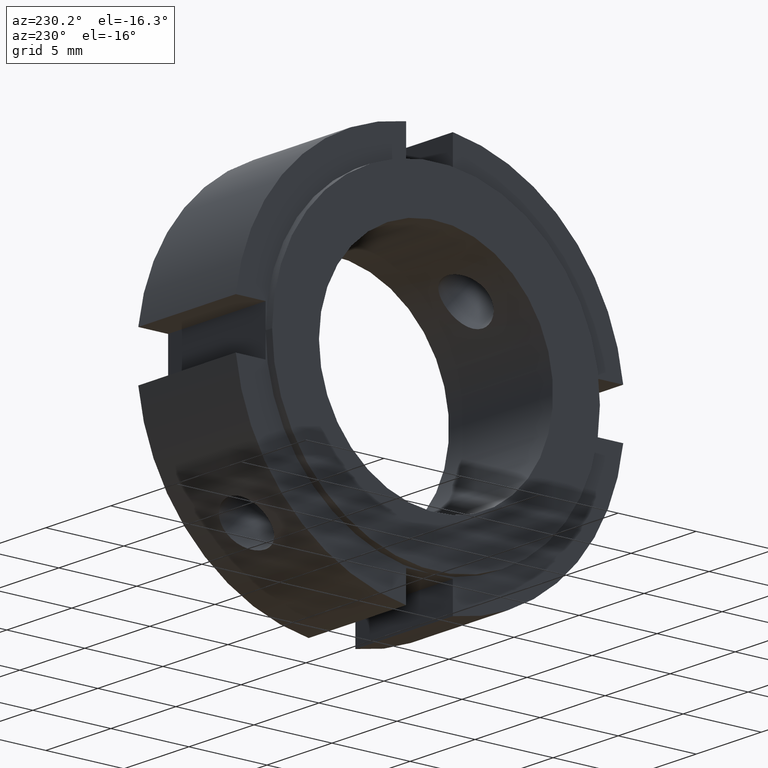
[diagram: clean part render]
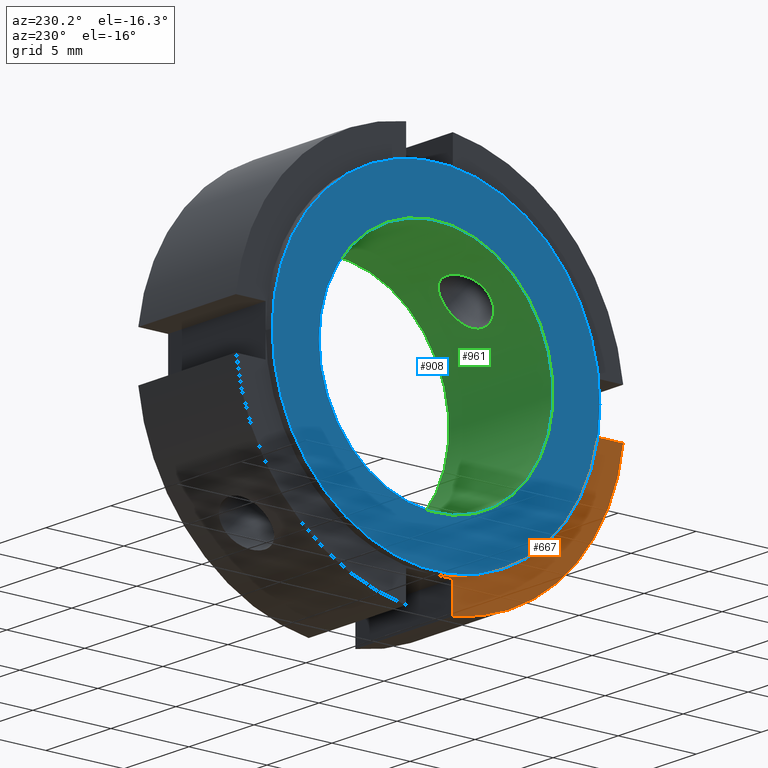
[diagram: same view with three faces highlighted in distinct colors, each labeled with its STEP entity id]
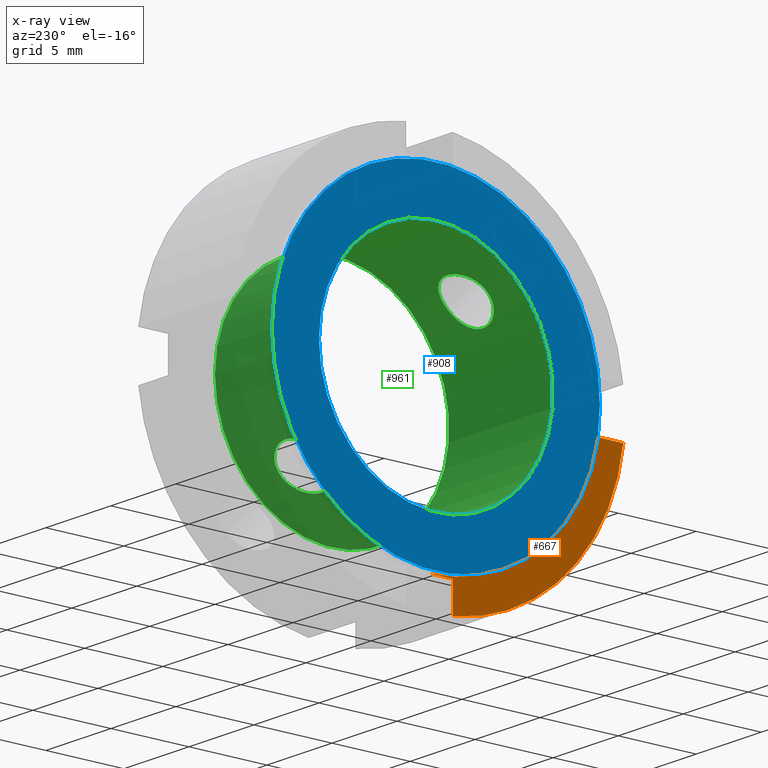
[diagram: x-ray of the same camera — body ghosted, the three highlighted faces saturated]
A machine part, auxiliary view with three faces highlighted in distinct colors.
The next image is the same camera in x-ray (body ghosted, the three faces saturated) — at least one of them is partly hidden behind the body in this view.
Their STEP definitions:

[orange] entity #667 — the highlighted planar face has unit normal (-1, 0, 0).
#249=CARTESIAN_POINT('',(0.499999999999998,-1.500000000000002,-10.499999999999996));
#250=VERTEX_POINT('',#249);
#251=CARTESIAN_POINT('',(0.499999999999998,-1.500000000000002,-12.409673645990853));
#252=VERTEX_POINT('',#251);
#253=CARTESIAN_POINT('',(0.499999999999998,-1.500000000000002,-10.499999999999996));
#254=DIRECTION('',(0.0,0.0,-1.0));
#255=VECTOR('',#254,1.909673645990857);
#256=LINE('',#253,#255);
#257=EDGE_CURVE('',#250,#252,#256,.T.);
#329=CARTESIAN_POINT('',(0.499999999999998,-1.942890E-015,-10.499999999999996));
#330=VERTEX_POINT('',#329);
#345=CARTESIAN_POINT('',(0.499999999999998,-2.664535E-015,-10.499999999999996));
#346=DIRECTION('',(0.0,-1.0,0.0));
#347=VECTOR('',#346,1.500000000000000);
#348=LINE('',#345,#347);
#349=EDGE_CURVE('',#330,#250,#348,.T.);
#399=CARTESIAN_POINT('',(0.499999999999998,-12.409673645990853,-1.499999999999998));
#400=VERTEX_POINT('',#399);
#401=CARTESIAN_POINT('',(0.499999999999998,-10.499999999999996,-1.499999999999999));
#402=VERTEX_POINT('',#401);
#403=CARTESIAN_POINT('',(0.499999999999998,-12.409673645990853,-1.499999999999998));
#404=DIRECTION('',(0.0,1.0,0.0));
#405=VECTOR('',#404,1.909673645990857);
#406=LINE('',#403,#405);
#407=EDGE_CURVE('',#400,#402,#406,.T.);
#439=CARTESIAN_POINT('',(0.499999999999998,-10.499999999999996,1.318390E-015));
#440=VERTEX_POINT('',#439);
#441=CARTESIAN_POINT('',(0.499999999999998,-10.499999999999996,-1.499999999999999));
#442=DIRECTION('',(0.0,0.0,1.0));
#443=VECTOR('',#442,1.500000000000000);
#444=LINE('',#441,#443);
#445=EDGE_CURVE('',#402,#440,#444,.T.);
#642=CARTESIAN_POINT('',(0.499999999999998,11.499999999999996,0.0));
#643=DIRECTION('',(-1.0,0.0,0.0));
#644=DIRECTION('',(0.0,0.0,1.0));
#645=AXIS2_PLACEMENT_3D('',#642,#643,#644);
#646=PLANE('',#645);
#647=ORIENTED_EDGE('',*,*,#349,.T.);
#648=ORIENTED_EDGE('',*,*,#257,.T.);
#649=CARTESIAN_POINT('',(0.499999999999998,0.0,0.0));
#650=DIRECTION('',(1.0,0.0,0.0));
#651=DIRECTION('',(0.0,1.0,0.0));
#652=AXIS2_PLACEMENT_3D('',#649,#650,#651);
#653=CIRCLE('',#652,12.499999999999996);
#654=EDGE_CURVE('',#400,#252,#653,.T.);
#655=ORIENTED_EDGE('',*,*,#654,.F.);
#656=ORIENTED_EDGE('',*,*,#407,.T.);
#657=ORIENTED_EDGE('',*,*,#445,.T.);
#658=CARTESIAN_POINT('',(0.499999999999998,0.0,0.0));
#659=DIRECTION('',(1.0,0.0,0.0));
#660=DIRECTION('',(0.0,1.0,0.0));
#661=AXIS2_PLACEMENT_3D('',#658,#659,#660);
#662=CIRCLE('',#661,10.499999999999998);
#663=EDGE_CURVE('',#440,#330,#662,.T.);
#664=ORIENTED_EDGE('',*,*,#663,.T.);
#665=EDGE_LOOP('',(#647,#648,#655,#656,#657,#664));
#666=FACE_OUTER_BOUND('',#665,.T.);
#667=ADVANCED_FACE('',(#666),#646,.T.);

[blue] entity #908 — the highlighted planar face has unit normal (-1, 0, 0).
#881=CARTESIAN_POINT('',(-2.921703E-015,9.0,0.0));
#882=DIRECTION('',(-1.0,0.0,0.0));
#883=DIRECTION('',(0.0,0.0,1.0));
#884=AXIS2_PLACEMENT_3D('',#881,#882,#883);
#885=PLANE('',#884);
#886=CARTESIAN_POINT('',(-4.440892E-015,10.499999999999998,0.0));
#887=VERTEX_POINT('',#886);
#888=CARTESIAN_POINT('',(-4.440892E-015,0.0,0.0));
#889=DIRECTION('',(1.0,0.0,0.0));
#890=DIRECTION('',(0.0,1.0,0.0));
#891=AXIS2_PLACEMENT_3D('',#888,#889,#890);
#892=CIRCLE('',#891,10.499999999999998);
#893=EDGE_CURVE('',#887,#887,#892,.T.);
#894=ORIENTED_EDGE('',*,*,#893,.F.);
#895=EDGE_LOOP('',(#894));
#896=FACE_OUTER_BOUND('',#895,.T.);
#897=CARTESIAN_POINT('',(-1.402514E-015,7.500000000000000,0.0));
#898=VERTEX_POINT('',#897);
#899=CARTESIAN_POINT('',(-1.402958E-015,0.0,0.0));
#900=DIRECTION('',(1.0,0.0,0.0));
#901=DIRECTION('',(0.0,1.0,0.0));
#902=AXIS2_PLACEMENT_3D('',#899,#900,#901);
#903=CIRCLE('',#902,7.500000000000000);
#904=EDGE_CURVE('',#898,#898,#903,.T.);
#905=ORIENTED_EDGE('',*,*,#904,.T.);
#906=EDGE_LOOP('',(#905));
#907=FACE_BOUND('',#906,.T.);
#908=ADVANCED_FACE('',(#896,#907),#885,.T.);

[green] entity #961 — the highlighted cylindrical surface (bore or boss wall) has radius 7.5 mm, axis along (1, 0, 0).
#114=CARTESIAN_POINT('',(3.999999999999997,-6.324171376353871,4.031731191747086));
#115=VERTEX_POINT('',#114);
#116=CARTESIAN_POINT('',(3.999999999999997,-6.324171376353870,4.031731191747088));
#117=CARTESIAN_POINT('',(4.204239403672410,-6.324171376353870,4.031731191747088));
#118=CARTESIAN_POINT('',(4.421634678388318,-6.301885020609548,4.067356368764484));
#119=CARTESIAN_POINT('',(4.820814424856688,-6.208630451458799,4.208331072357209));
#120=CARTESIAN_POINT('',(5.002656817407534,-6.137316574939787,4.313287444523376));
#121=CARTESIAN_POINT('',(5.289772324510700,-5.965691695416834,4.547705209113352));
#122=CARTESIAN_POINT('',(5.414422851442749,-5.853754513232757,4.692938598354518));
#123=CARTESIAN_POINT('',(5.580054235911417,-5.594941590962876,4.998674142246283));
#124=CARTESIAN_POINT('',(5.620999999999996,-5.447708817706445,5.158892900091770));
#125=CARTESIAN_POINT('',(5.620999999999999,-5.158892900091763,5.447708817706454));
#126=CARTESIAN_POINT('',(5.580054235911417,-4.998674142246277,5.594941590962880));
#127=CARTESIAN_POINT('',(5.414422851442749,-4.692938598354512,5.853754513232762));
#128=CARTESIAN_POINT('',(5.289772324510700,-4.547705209113346,5.965691695416839));
#129=CARTESIAN_POINT('',(5.002656817407533,-4.313287444523370,6.137316574939793));
#130=CARTESIAN_POINT('',(4.820814424856689,-4.208331072357198,6.208630451458804));
#131=CARTESIAN_POINT('',(4.421634678388319,-4.067356368764472,6.301885020609554));
#132=CARTESIAN_POINT('',(4.204239403672410,-4.031731191747082,6.324171376353874));
#133=CARTESIAN_POINT('',(3.795760596327584,-4.031731191747082,6.324171376353874));
#134=CARTESIAN_POINT('',(3.578365321611675,-4.067356368764472,6.301885020609554));
#135=CARTESIAN_POINT('',(3.179185575143305,-4.208331072357198,6.208630451458804));
#136=CARTESIAN_POINT('',(2.997343182592461,-4.313287444523370,6.137316574939793));
#137=CARTESIAN_POINT('',(2.710227675489293,-4.547705209113346,5.965691695416839));
#138=CARTESIAN_POINT('',(2.585577148557245,-4.692938598354512,5.853754513232762));
#139=CARTESIAN_POINT('',(2.419945764088577,-4.998674142246277,5.594941590962881));
#140=CARTESIAN_POINT('',(2.378999999999996,-5.158892900091763,5.447708817706454));
#141=CARTESIAN_POINT('',(2.378999999999997,-5.447708817706445,5.158892900091770));
#142=CARTESIAN_POINT('',(2.419945764088577,-5.594941590962876,4.998674142246284));
#143=CARTESIAN_POINT('',(2.585577148557245,-5.853754513232757,4.692938598354519));
#144=CARTESIAN_POINT('',(2.710227675489294,-5.965691695416834,4.547705209113352));
#145=CARTESIAN_POINT('',(2.997343182592461,-6.137316574939787,4.313287444523376));
#146=CARTESIAN_POINT('',(3.179185575143306,-6.208630451458799,4.208331072357209));
#147=CARTESIAN_POINT('',(3.578365321611676,-6.301885020609548,4.067356368764484));
#148=CARTESIAN_POINT('',(3.795760596327584,-6.324171376353870,4.031731191747088));
#149=CARTESIAN_POINT('',(3.999999999999997,-6.324171376353870,4.031731191747088));
#150=B_SPLINE_CURVE_WITH_KNOTS('',3,(#116,#117,#118,#119,#120,#121,#122,#123,#124,#125,#126,#127,#128,#129,#130,#131,#132,#133,#134,#135,#136,#137,#138,#139,#140,#141,#142,#143,#144,#145,#146,#147,#148,#149),.UNSPECIFIED.,.T.,.U.,(4,2,2,2,2,2,2,2,2,2,2,2,2,2,2,2,4),(0.0,0.061271821101724,0.122543642203448,0.183810750361435,0.245077858519422,0.306344966677410,0.367612074835397,0.428883895937121,0.490155717038844,0.551427538140568,0.612699359242292,0.673966467400279,0.735233575558267,0.796500683716254,0.857767791874241,0.919039612975965,0.980311434077689),.UNSPECIFIED.);
#151=EDGE_CURVE('',#115,#115,#150,.T.);
#202=CARTESIAN_POINT('',(3.999999999999997,4.031731191747085,-6.324171376353872));
#203=VERTEX_POINT('',#202);
#204=CARTESIAN_POINT('',(3.999999999999997,4.031731191747086,-6.324171376353871));
#205=CARTESIAN_POINT('',(3.795760596327584,4.031731191747086,-6.324171376353871));
#206=CARTESIAN_POINT('',(3.578365321611676,4.067356368764478,-6.301885020609551));
#207=CARTESIAN_POINT('',(3.179185575143306,4.208331072357204,-6.208630451458802));
#208=CARTESIAN_POINT('',(2.997343182592461,4.313287444523375,-6.137316574939790));
#209=CARTESIAN_POINT('',(2.710227675489293,4.547705209113351,-5.965691695416837));
#210=CARTESIAN_POINT('',(2.585577148557245,4.692938598354517,-5.853754513232757));
#211=CARTESIAN_POINT('',(2.419945764088578,4.998674142246282,-5.594941590962876));
#212=CARTESIAN_POINT('',(2.378999999999996,5.158892900091767,-5.447708817706447));
#213=CARTESIAN_POINT('',(2.378999999999997,5.447708817706451,-5.158892900091763));
#214=CARTESIAN_POINT('',(2.419945764088578,5.594941590962880,-4.998674142246278));
#215=CARTESIAN_POINT('',(2.585577148557246,5.853754513232762,-4.692938598354512));
#216=CARTESIAN_POINT('',(2.710227675489294,5.965691695416840,-4.547705209113345));
#217=CARTESIAN_POINT('',(2.997343182592462,6.137316574939793,-4.313287444523369));
#218=CARTESIAN_POINT('',(3.179185575143309,6.208630451458803,-4.208331072357203));
#219=CARTESIAN_POINT('',(3.578365321611678,6.301885020609550,-4.067356368764478));
#220=CARTESIAN_POINT('',(3.795760596327584,6.324171376353874,-4.031731191747082));
#221=CARTESIAN_POINT('',(4.204239403672410,6.324171376353874,-4.031731191747082));
#222=CARTESIAN_POINT('',(4.421634678388315,6.301885020609550,-4.067356368764477));
#223=CARTESIAN_POINT('',(4.820814424856684,6.208630451458803,-4.208331072357202));
#224=CARTESIAN_POINT('',(5.002656817407532,6.137316574939793,-4.313287444523370));
#225=CARTESIAN_POINT('',(5.289772324510700,5.965691695416840,-4.547705209113345));
#226=CARTESIAN_POINT('',(5.414422851442748,5.853754513232763,-4.692938598354512));
#227=CARTESIAN_POINT('',(5.580054235911415,5.594941590962881,-4.998674142246278));
#228=CARTESIAN_POINT('',(5.620999999999996,5.447708817706451,-5.158892900091763));
#229=CARTESIAN_POINT('',(5.620999999999999,5.158892900091767,-5.447708817706447));
#230=CARTESIAN_POINT('',(5.580054235911415,4.998674142246281,-5.594941590962876));
#231=CARTESIAN_POINT('',(5.414422851442748,4.692938598354516,-5.853754513232758));
#232=CARTESIAN_POINT('',(5.289772324510702,4.547705209113351,-5.965691695416837));
#233=CARTESIAN_POINT('',(5.002656817407534,4.313287444523375,-6.137316574939790));
#234=CARTESIAN_POINT('',(4.820814424856689,4.208331072357204,-6.208630451458802));
#235=CARTESIAN_POINT('',(4.421634678388319,4.067356368764478,-6.301885020609551));
#236=CARTESIAN_POINT('',(4.204239403672410,4.031731191747086,-6.324171376353872));
#237=CARTESIAN_POINT('',(3.999999999999997,4.031731191747086,-6.324171376353872));
#238=B_SPLINE_CURVE_WITH_KNOTS('',3,(#204,#205,#206,#207,#208,#209,#210,#211,#212,#213,#214,#215,#216,#217,#218,#219,#220,#221,#222,#223,#224,#225,#226,#227,#228,#229,#230,#231,#232,#233,#234,#235,#236,#237),.UNSPECIFIED.,.T.,.U.,(4,2,2,2,2,2,2,2,2,2,2,2,2,2,2,2,4),(0.0,0.061271821101724,0.122543642203448,0.183810750361435,0.245077858519422,0.306344966677410,0.367612074835397,0.428883895937121,0.490155717038845,0.551427538140568,0.612699359242292,0.673966467400280,0.735233575558267,0.796500683716254,0.857767791874242,0.919039612975966,0.980311434077690),.UNSPECIFIED.);
#239=EDGE_CURVE('',#203,#203,#238,.T.);
#810=CARTESIAN_POINT('',(7.999999999999997,7.500000000000000,0.0));
#811=VERTEX_POINT('',#810);
#812=CARTESIAN_POINT('',(7.999999999999997,0.0,0.0));
#813=DIRECTION('',(1.0,0.0,0.0));
#814=DIRECTION('',(0.0,1.0,0.0));
#815=AXIS2_PLACEMENT_3D('',#812,#813,#814);
#816=CIRCLE('',#815,7.500000000000000);
#817=EDGE_CURVE('',#811,#811,#816,.T.);
#897=CARTESIAN_POINT('',(-1.402514E-015,7.500000000000000,0.0));
#898=VERTEX_POINT('',#897);
#899=CARTESIAN_POINT('',(-1.402958E-015,0.0,0.0));
#900=DIRECTION('',(1.0,0.0,0.0));
#901=DIRECTION('',(0.0,1.0,0.0));
#902=AXIS2_PLACEMENT_3D('',#899,#900,#901);
#903=CIRCLE('',#902,7.500000000000000);
#904=EDGE_CURVE('',#898,#898,#903,.T.);
#944=CARTESIAN_POINT('',(3.999999999999998,0.0,0.0));
#945=DIRECTION('',(1.0,0.0,0.0));
#946=DIRECTION('',(0.0,1.0,0.0));
#947=AXIS2_PLACEMENT_3D('',#944,#945,#946);
#948=CYLINDRICAL_SURFACE('',#947,7.500000000000000);
#949=ORIENTED_EDGE('',*,*,#904,.F.);
#950=EDGE_LOOP('',(#949));
#951=FACE_OUTER_BOUND('',#950,.T.);
#952=ORIENTED_EDGE('',*,*,#151,.T.);
#953=EDGE_LOOP('',(#952));
#954=FACE_BOUND('',#953,.T.);
#955=ORIENTED_EDGE('',*,*,#239,.T.);
#956=EDGE_LOOP('',(#955));
#957=FACE_BOUND('',#956,.T.);
#958=ORIENTED_EDGE('',*,*,#817,.T.);
#959=EDGE_LOOP('',(#958));
#960=FACE_BOUND('',#959,.T.);
#961=ADVANCED_FACE('',(#951,#954,#957,#960),#948,.F.);